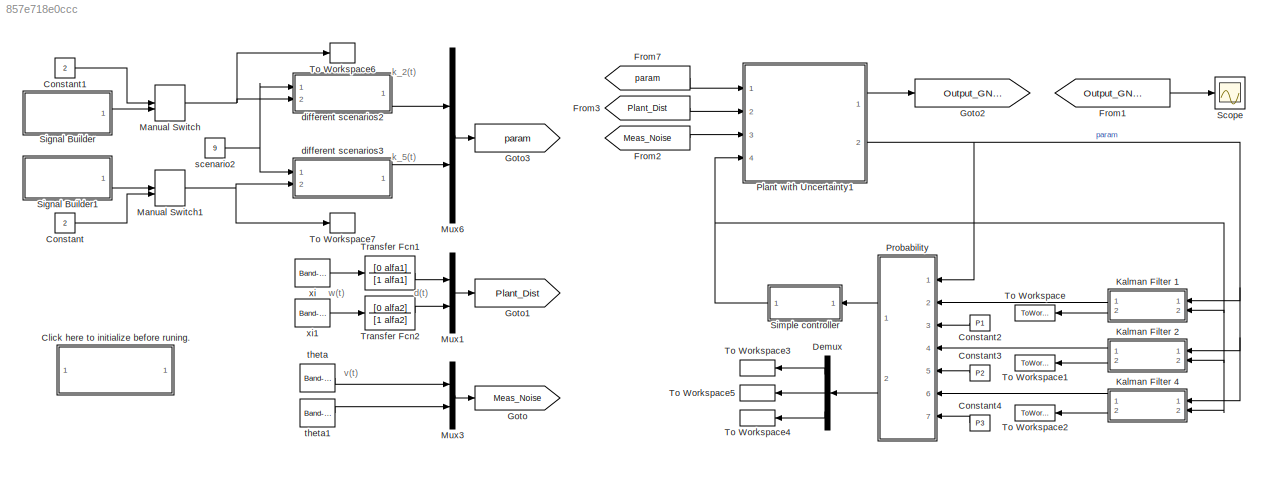
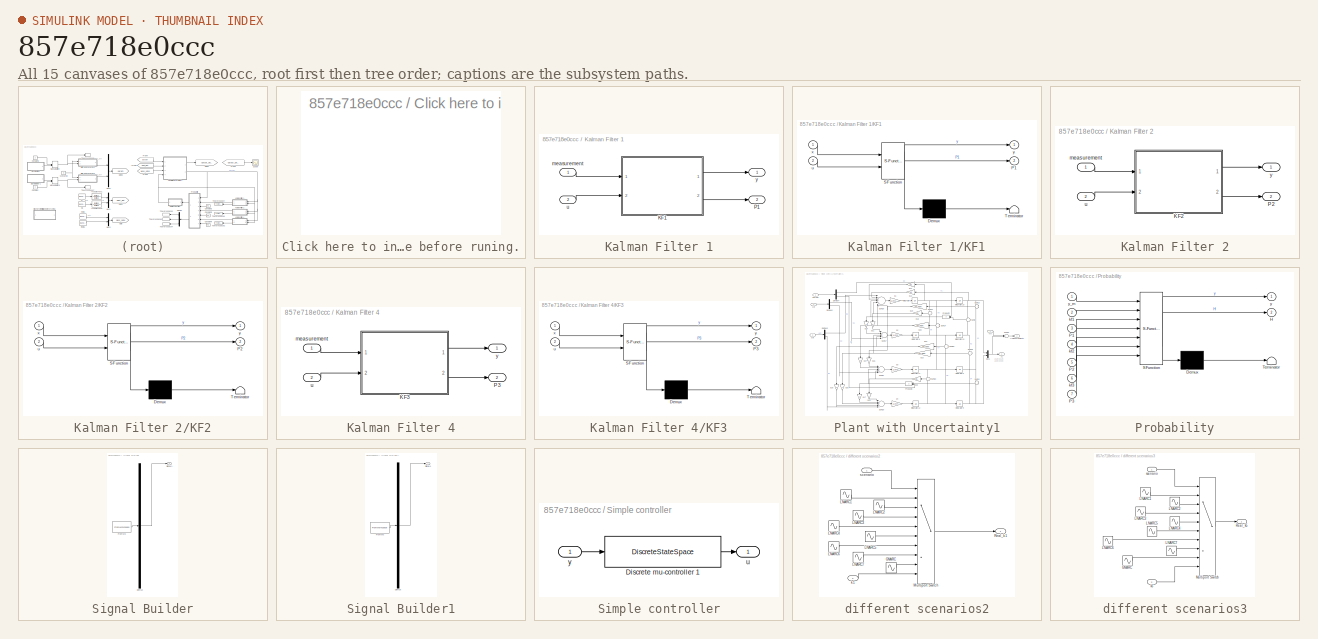
[diagram: thumbnail index - all 15 canvases of the model, root first then tree order]
MODEL slx_857e718e0ccc
KIND model
CONFIG AbsTol = auto
CONFIG EnableMultiTasking = on
CONFIG FixedStep = Ts
CONFIG MaxStep = auto
CONFIG MinStep = auto
CONFIG RelTol = 1e-3
CONFIG SampleTimeConstraint = Unconstrained
CONFIG Solver = ode45
CONFIG SolverName = ode45
CONFIG StartTime = 0.0
CONFIG StopTime = 300
BLOCK [SubSystem] Click here to initialize before runing.
  OpenFcn = start_up
  Ports = []
  RequestExecContextInheritance = off
BLOCK [Constant] Constant
  Value = 2
BLOCK [Constant] Constant1
  Value = 2
BLOCK [Constant] Constant2
  Value = P1
BLOCK [Constant] Constant3
  Value = P2
BLOCK [Constant] Constant4
  Value = P3
BLOCK [Demux] Demux
  DisplayOption = bar
  Outputs = 3
  Ports = [1, 3]
BLOCK [From] From1
  GotoTag = Output_GNARC
BLOCK [From] From2
  GotoTag = Meas_Noise
BLOCK [From] From3
  GotoTag = Plant_Dist
BLOCK [From] From7
  GotoTag = param
BLOCK [Goto] Goto
  GotoTag = Meas_Noise
BLOCK [Goto] Goto1
  GotoTag = Plant_Dist
BLOCK [Goto] Goto2
  GotoTag = Output_GNARC
BLOCK [Goto] Goto3
  GotoTag = param
BLOCK [SubSystem] Kalman Filter 1
  Ports = [2, 2]
  RequestExecContextInheritance = off
BLOCK [SubSystem] Kalman Filter 1/KF1
  ErrorFcn = Stateflow.Translate.translate
  PermitHierarchicalResolution = ExplicitOnly
  Ports = [2, 2]
  RequestExecContextInheritance = off
  SFBlockType = MATLAB Function
  TreatAsAtomicUnit = on
BLOCK [Demux] Kalman Filter 1/KF1/ Demux 
  Outputs = 1
  Ports = [1, 1]
BLOCK [S-Function] Kalman Filter 1/KF1/ SFunction 
  EnableBusSupport = on
  FunctionName = sf_sfun
  PortCounts = [2 3]
  Ports = [2, 3]
  SFcnIsStateOwnerBlock = off
  SFunctionDeploymentMode = off
  Tag = Stateflow S-Function 5
BLOCK [Terminator] Kalman Filter 1/KF1/ Terminator 
BLOCK [Outport] Kalman Filter 1/KF1/P1
  IconDisplay = Port number
  Port = 2
  VectorParamsAs1DForOutWhenUnconnected = off
BLOCK [Inport] Kalman Filter 1/KF1/u
  IconDisplay = Port number
  Port = 2
BLOCK [Inport] Kalman Filter 1/KF1/x
  IconDisplay = Port number
BLOCK [Outport] Kalman Filter 1/KF1/y
  IconDisplay = Port number
  VectorParamsAs1DForOutWhenUnconnected = off
BLOCK [Outport] Kalman Filter 1/P1
  IconDisplay = Port number
  Port = 2
  VectorParamsAs1DForOutWhenUnconnected = off
BLOCK [Inport] Kalman Filter 1/measurement
  IconDisplay = Port number
BLOCK [Inport] Kalman Filter 1/u
  IconDisplay = Port number
  Port = 2
BLOCK [Outport] Kalman Filter 1/y
  IconDisplay = Port number
  VectorParamsAs1DForOutWhenUnconnected = off
BLOCK [SubSystem] Kalman Filter 2
  Ports = [2, 2]
  RequestExecContextInheritance = off
BLOCK [SubSystem] Kalman Filter 2/KF2
  ErrorFcn = Stateflow.Translate.translate
  PermitHierarchicalResolution = ExplicitOnly
  Ports = [2, 2]
  RequestExecContextInheritance = off
  SFBlockType = MATLAB Function
  TreatAsAtomicUnit = on
BLOCK [Demux] Kalman Filter 2/KF2/ Demux 
  Outputs = 1
  Ports = [1, 1]
BLOCK [S-Function] Kalman Filter 2/KF2/ SFunction 
  EnableBusSupport = on
  FunctionName = sf_sfun
  PortCounts = [2 3]
  Ports = [2, 3]
  SFcnIsStateOwnerBlock = off
  SFunctionDeploymentMode = off
  Tag = Stateflow S-Function 3
BLOCK [Terminator] Kalman Filter 2/KF2/ Terminator 
BLOCK [Outport] Kalman Filter 2/KF2/P2
  IconDisplay = Port number
  Port = 2
  VectorParamsAs1DForOutWhenUnconnected = off
BLOCK [Inport] Kalman Filter 2/KF2/u
  IconDisplay = Port number
  Port = 2
BLOCK [Inport] Kalman Filter 2/KF2/x
  IconDisplay = Port number
BLOCK [Outport] Kalman Filter 2/KF2/y
  IconDisplay = Port number
  VectorParamsAs1DForOutWhenUnconnected = off
BLOCK [Outport] Kalman Filter 2/P2
  IconDisplay = Port number
  Port = 2
  VectorParamsAs1DForOutWhenUnconnected = off
BLOCK [Inport] Kalman Filter 2/measurement
  IconDisplay = Port number
BLOCK [Inport] Kalman Filter 2/u
  IconDisplay = Port number
  Port = 2
BLOCK [Outport] Kalman Filter 2/y
  IconDisplay = Port number
  VectorParamsAs1DForOutWhenUnconnected = off
BLOCK [SubSystem] Kalman Filter 4
  Ports = [2, 2]
  RequestExecContextInheritance = off
BLOCK [SubSystem] Kalman Filter 4/KF3
  ErrorFcn = Stateflow.Translate.translate
  PermitHierarchicalResolution = ExplicitOnly
  Ports = [2, 2]
  RequestExecContextInheritance = off
  SFBlockType = MATLAB Function
  TreatAsAtomicUnit = on
BLOCK [Demux] Kalman Filter 4/KF3/ Demux 
  Outputs = 1
  Ports = [1, 1]
BLOCK [S-Function] Kalman Filter 4/KF3/ SFunction 
  EnableBusSupport = on
  FunctionName = sf_sfun
  PortCounts = [2 3]
  Ports = [2, 3]
  SFcnIsStateOwnerBlock = off
  SFunctionDeploymentMode = off
  Tag = Stateflow S-Function 4
BLOCK [Terminator] Kalman Filter 4/KF3/ Terminator 
BLOCK [Outport] Kalman Filter 4/KF3/P3
  IconDisplay = Port number
  Port = 2
  VectorParamsAs1DForOutWhenUnconnected = off
BLOCK [Inport] Kalman Filter 4/KF3/u
  IconDisplay = Port number
  Port = 2
BLOCK [Inport] Kalman Filter 4/KF3/x
  IconDisplay = Port number
BLOCK [Outport] Kalman Filter 4/KF3/y
  IconDisplay = Port number
  VectorParamsAs1DForOutWhenUnconnected = off
BLOCK [Outport] Kalman Filter 4/P3
  IconDisplay = Port number
  Port = 2
  VectorParamsAs1DForOutWhenUnconnected = off
BLOCK [Inport] Kalman Filter 4/measurement
  IconDisplay = Port number
BLOCK [Inport] Kalman Filter 4/u
  IconDisplay = Port number
  Port = 2
BLOCK [Outport] Kalman Filter 4/y
  IconDisplay = Port number
  VectorParamsAs1DForOutWhenUnconnected = off
BLOCK [ManualSwitch] Manual Switch
  CurrentSetting = 0
BLOCK [ManualSwitch] Manual Switch1
BLOCK [Mux] Mux1
  DisplayOption = bar
  Inputs = 2
  Ports = [2, 1]
BLOCK [Mux] Mux3
  DisplayOption = bar
  Inputs = 2
  Ports = [2, 1]
BLOCK [Mux] Mux6
  DisplayOption = bar
  Inputs = 2
  Ports = [2, 1]
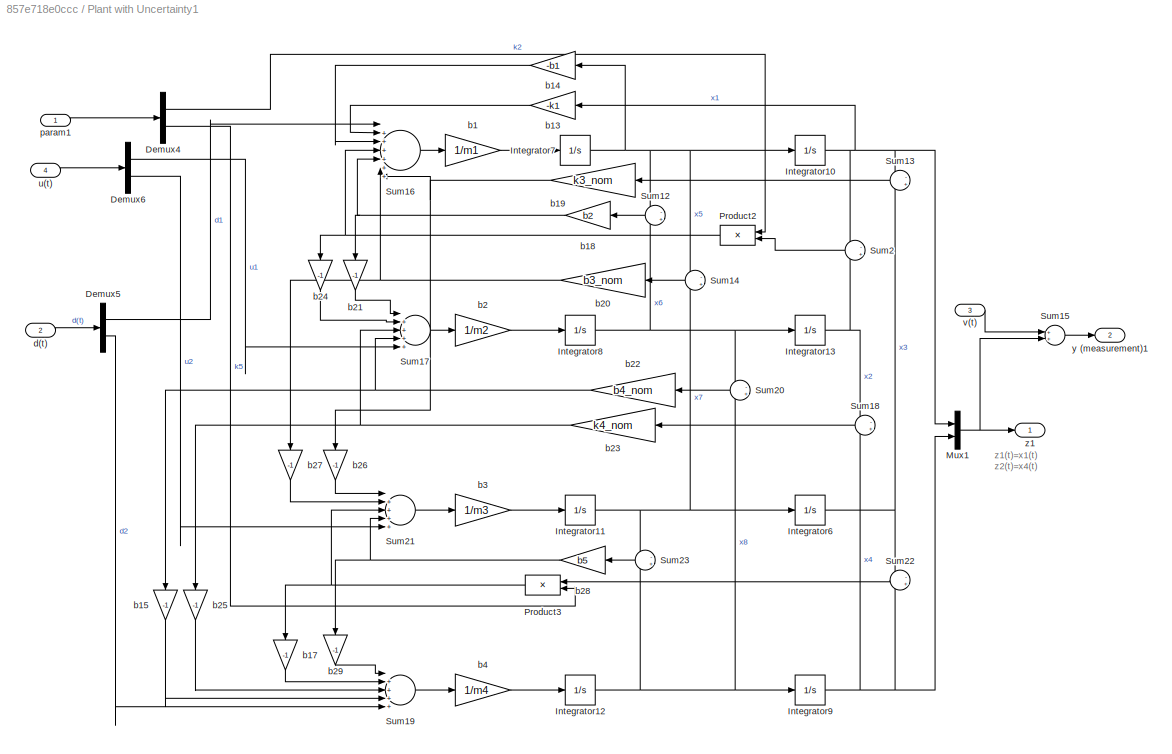
BLOCK [SubSystem] Plant with Uncertainty1
  Ports = [4, 2]
  RequestExecContextInheritance = off
BLOCK [Demux] Plant with Uncertainty1/Demux4
  DisplayOption = bar
  Outputs = 2
  Ports = [1, 2]
BLOCK [Demux] Plant with Uncertainty1/Demux5
  DisplayOption = bar
  Outputs = 2
  Ports = [1, 2]
BLOCK [Demux] Plant with Uncertainty1/Demux6
  DisplayOption = bar
  Outputs = 2
  Ports = [1, 2]
BLOCK [Integrator] Plant with Uncertainty1/Integrator10
  Ports = [1, 1]
BLOCK [Integrator] Plant with Uncertainty1/Integrator11
  Ports = [1, 1]
BLOCK [Integrator] Plant with Uncertainty1/Integrator12
  Ports = [1, 1]
BLOCK [Integrator] Plant with Uncertainty1/Integrator13
  Ports = [1, 1]
BLOCK [Integrator] Plant with Uncertainty1/Integrator6
  Ports = [1, 1]
BLOCK [Integrator] Plant with Uncertainty1/Integrator7
  Ports = [1, 1]
BLOCK [Integrator] Plant with Uncertainty1/Integrator8
  Ports = [1, 1]
BLOCK [Integrator] Plant with Uncertainty1/Integrator9
  Ports = [1, 1]
BLOCK [Mux] Plant with Uncertainty1/Mux1
  DisplayOption = bar
  Inputs = 2
  Ports = [2, 1]
BLOCK [Product] Plant with Uncertainty1/Product2
  Ports = [2, 1]
  RndMeth = Floor
BLOCK [Product] Plant with Uncertainty1/Product3
  Ports = [2, 1]
  RndMeth = Floor
BLOCK [Sum] Plant with Uncertainty1/Sum12
  IconShape = round
  Inputs = -+
  Ports = [2, 1]
BLOCK [Sum] Plant with Uncertainty1/Sum13
  IconShape = round
  Inputs = -+
  Ports = [2, 1]
BLOCK [Sum] Plant with Uncertainty1/Sum14
  IconShape = round
  Inputs = -+
  Ports = [2, 1]
BLOCK [Sum] Plant with Uncertainty1/Sum15
  Ports = [2, 1]
BLOCK [Sum] Plant with Uncertainty1/Sum16
  IconShape = round
  Inputs = |+++++++
  Ports = [7, 1]
BLOCK [Sum] Plant with Uncertainty1/Sum17
  IconShape = round
  Inputs = |+++++
  Ports = [5, 1]
BLOCK [Sum] Plant with Uncertainty1/Sum18
  IconShape = round
  Inputs = -+
  Ports = [2, 1]
BLOCK [Sum] Plant with Uncertainty1/Sum19
  IconShape = round
  Inputs = |+++++
  Ports = [5, 1]
BLOCK [Sum] Plant with Uncertainty1/Sum2
  IconShape = round
  Inputs = -+
  Ports = [2, 1]
BLOCK [Sum] Plant with Uncertainty1/Sum20
  IconShape = round
  Inputs = -+
  Ports = [2, 1]
BLOCK [Sum] Plant with Uncertainty1/Sum21
  IconShape = round
  Inputs = |+++++
  Ports = [5, 1]
BLOCK [Sum] Plant with Uncertainty1/Sum22
  IconShape = round
  Inputs = -+
  Ports = [2, 1]
BLOCK [Sum] Plant with Uncertainty1/Sum23
  IconShape = round
  Inputs = -+
  Ports = [2, 1]
BLOCK [Gain] Plant with Uncertainty1/b1
  Gain = 1/m1
BLOCK [Gain] Plant with Uncertainty1/b13
  Gain = -k1
BLOCK [Gain] Plant with Uncertainty1/b14
  Gain = -b1
BLOCK [Gain] Plant with Uncertainty1/b15
  Gain = -1
BLOCK [Gain] Plant with Uncertainty1/b17
  Gain = -1
BLOCK [Gain] Plant with Uncertainty1/b18
  Gain = b2
BLOCK [Gain] Plant with Uncertainty1/b19
  Gain = k3_nom
BLOCK [Gain] Plant with Uncertainty1/b2
  Gain = 1/m2
BLOCK [Gain] Plant with Uncertainty1/b20
  Gain = b3_nom
BLOCK [Gain] Plant with Uncertainty1/b21
  Gain = -1
BLOCK [Gain] Plant with Uncertainty1/b22
  Gain = b4_nom
BLOCK [Gain] Plant with Uncertainty1/b23
  Gain = k4_nom
BLOCK [Gain] Plant with Uncertainty1/b24
  Gain = -1
BLOCK [Gain] Plant with Uncertainty1/b25
  Gain = -1
BLOCK [Gain] Plant with Uncertainty1/b26
  Gain = -1
BLOCK [Gain] Plant with Uncertainty1/b27
  Gain = -1
BLOCK [Gain] Plant with Uncertainty1/b28
  Gain = b5
BLOCK [Gain] Plant with Uncertainty1/b29
  Gain = -1
BLOCK [Gain] Plant with Uncertainty1/b3
  Gain = 1/m3
BLOCK [Gain] Plant with Uncertainty1/b4
  Gain = 1/m4
BLOCK [Inport] Plant with Uncertainty1/d(t)
  IconDisplay = Port number
  Port = 2
BLOCK [Inport] Plant with Uncertainty1/param1
  IconDisplay = Port number
BLOCK [Inport] Plant with Uncertainty1/u(t)
  IconDisplay = Port number
  Port = 4
BLOCK [Inport] Plant with Uncertainty1/v(t)
  IconDisplay = Port number
  Port = 3
BLOCK [Outport] Plant with Uncertainty1/y (measurement)1
  IconDisplay = Port number
  Port = 2
  VectorParamsAs1DForOutWhenUnconnected = off
BLOCK [Outport] Plant with Uncertainty1/z1
  IconDisplay = Port number
  VectorParamsAs1DForOutWhenUnconnected = off
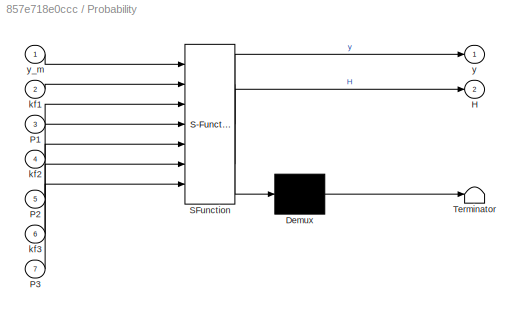
BLOCK [SubSystem] Probability
  ErrorFcn = Stateflow.Translate.translate
  PermitHierarchicalResolution = ExplicitOnly
  Ports = [7, 2]
  RequestExecContextInheritance = off
  SFBlockType = MATLAB Function
  TreatAsAtomicUnit = on
BLOCK [Demux] Probability/ Demux 
  Outputs = 1
  Ports = [1, 1]
BLOCK [S-Function] Probability/ SFunction 
  EnableBusSupport = on
  FunctionName = sf_sfun
  PortCounts = [7 3]
  Ports = [7, 3]
  SFcnIsStateOwnerBlock = off
  SFunctionDeploymentMode = off
  Tag = Stateflow S-Function 2
BLOCK [Terminator] Probability/ Terminator 
BLOCK [Outport] Probability/H
  IconDisplay = Port number
  Port = 2
  VectorParamsAs1DForOutWhenUnconnected = off
BLOCK [Inport] Probability/P1
  IconDisplay = Port number
  Port = 3
BLOCK [Inport] Probability/P2
  IconDisplay = Port number
  Port = 5
BLOCK [Inport] Probability/P3
  IconDisplay = Port number
  Port = 7
BLOCK [Inport] Probability/kf1
  IconDisplay = Port number
  Port = 2
BLOCK [Inport] Probability/kf2
  IconDisplay = Port number
  Port = 4
BLOCK [Inport] Probability/kf3
  IconDisplay = Port number
  Port = 6
BLOCK [Outport] Probability/y
  IconDisplay = Port number
  VectorParamsAs1DForOutWhenUnconnected = off
BLOCK [Inport] Probability/y_m
  IconDisplay = Port number
BLOCK [Scope] Scope
  Floating = off
  NumInputPorts = 1
  Ports = [1]
  ScopeSpecificationString = Simulink.scopes.TimeScopeBlockCfg('CurrentConfiguration', extmgr.ConfigurationSet(extmgr.Configuration('Core','General UI',true),extmgr.Configuration('Core','Source UI',true),extmgr.Configuration('Sources','WiredSimulink',true),extmgr.Configuration('Visuals','Time Domain',true,'SerializedDisplays',{struct('MinYLimReal','-1.04424','MaxYLimReal','0.9276','YLabelReal','','MinYLimMag','0.00000','MaxYL...<+1401ch>
BLOCK [SubSystem] Signal Builder
  ClipboardFcn = sigbuilder_block('clipboard');
  CloseFcn = sigbuilder_block('close');
  ContinueFcn = sigbuilder_block('continue');
  CopyFcn = sigbuilder_block('copy');
  DeleteFcn = sigbuilder_block('delete');
  LoadFcn = sigbuilder_block('load');
  MaskHideContents = on
  ModelCloseFcn = sigbuilder_block('modelClose');
  NameChangeFcn = sigbuilder_block('namechange');
  OpenFcn = sigbuilder_block('open',[420.6 153 550.8 400.2 ]);
  PauseFcn = sigbuilder_block('pause');
  Ports = [0, 1]
  PreSaveFcn = sigbuilder_block('preSave');
  RequestExecContextInheritance = off
  StartFcn = sigbuilder_block('start');
  StopFcn = sigbuilder_block('stop');
  Tag = STV Subsys
BLOCK [Demux] Signal Builder/Demux
  Outputs = 1
  Ports = [1, 1]
  Tag = STV Demux
BLOCK [FromWorkspace] Signal Builder/FromWs
  SampleTime = 0
  Tag = STV FromWs
  VariableName = tuvar
  ZeroCross = on
BLOCK [Outport] Signal Builder/Signal 1
  IconDisplay = Port number
  Tag = STV Outport
BLOCK [SubSystem] Signal Builder1
  ClipboardFcn = sigbuilder_block('clipboard');
  CloseFcn = sigbuilder_block('close');
  ContinueFcn = sigbuilder_block('continue');
  CopyFcn = sigbuilder_block('copy');
  DeleteFcn = sigbuilder_block('delete');
  LoadFcn = sigbuilder_block('load');
  MaskHideContents = on
  ModelCloseFcn = sigbuilder_block('modelClose');
  NameChangeFcn = sigbuilder_block('namechange');
  OpenFcn = sigbuilder_block('open',[420.6 153 550.8 400.2 ]);
  PauseFcn = sigbuilder_block('pause');
  Ports = [0, 1]
  PreSaveFcn = sigbuilder_block('preSave');
  RequestExecContextInheritance = off
  StartFcn = sigbuilder_block('start');
  StopFcn = sigbuilder_block('stop');
  Tag = STV Subsys
BLOCK [Demux] Signal Builder1/Demux
  Outputs = 1
  Ports = [1, 1]
  Tag = STV Demux
BLOCK [FromWorkspace] Signal Builder1/FromWs
  SampleTime = 0
  Tag = STV FromWs
  VariableName = tuvar
  ZeroCross = on
BLOCK [Outport] Signal Builder1/Signal 1
  IconDisplay = Port number
  Tag = STV Outport
BLOCK [SubSystem] Simple controller
  Ports = [1, 1]
  RequestExecContextInheritance = off
BLOCK [DiscreteStateSpace] Simple controller/Discrete mu-controller 1
  A = A_D_Re_GNARC
  B = B_D_Re_GNARC
  C = C_D_Re_GNARC
  D = D_D_Re_GNARC
  Description = disp('sss')
  SampleTime = Ts
BLOCK [Outport] Simple controller/u
  IconDisplay = Port number
  VectorParamsAs1DForOutWhenUnconnected = off
BLOCK [Inport] Simple controller/y
  IconDisplay = Port number
BLOCK [ToWorkspace] To Workspace
  FixptAsFi = on
  MaxDataPoints = inf
  Ports = [1]
  SampleTime = -1
  Save2DSignal = 2-D array (concatenate along first dimension)
  VariableName = P1_out
BLOCK [ToWorkspace] To Workspace1
  FixptAsFi = on
  MaxDataPoints = inf
  Ports = [1]
  SampleTime = -1
  Save2DSignal = 2-D array (concatenate along first dimension)
  VariableName = P2_out
BLOCK [ToWorkspace] To Workspace2
  FixptAsFi = on
  MaxDataPoints = inf
  Ports = [1]
  SampleTime = -1
  Save2DSignal = 2-D array (concatenate along first dimension)
  VariableName = P3_out
BLOCK [ToWorkspace] To Workspace3
  FixptAsFi = on
  MaxDataPoints = inf
  Ports = [1]
  SampleTime = -1
  SaveFormat = Timeseries
  VariableName = h1
BLOCK [ToWorkspace] To Workspace4
  FixptAsFi = on
  MaxDataPoints = inf
  Ports = [1]
  SampleTime = -1
  SaveFormat = Timeseries
  VariableName = h3
BLOCK [ToWorkspace] To Workspace5
  FixptAsFi = on
  MaxDataPoints = inf
  Ports = [1]
  SampleTime = -1
  SaveFormat = Timeseries
  VariableName = h2
BLOCK [ToWorkspace] To Workspace6
  FixptAsFi = on
  MaxDataPoints = inf
  Ports = [1]
  SampleTime = -1
  SaveFormat = Timeseries
  VariableName = k2_in
BLOCK [ToWorkspace] To Workspace7
  FixptAsFi = on
  MaxDataPoints = inf
  Ports = [1]
  SampleTime = -1
  SaveFormat = Timeseries
  VariableName = k5_in
BLOCK [TransferFcn] Transfer Fcn1
  Denominator = [1 alfa1]
  Numerator = [0 alfa1]
BLOCK [TransferFcn] Transfer Fcn2
  Denominator = [1 alfa2]
  Numerator = [0 alfa2]
BLOCK [SubSystem] different scenarios2
  Ports = [2, 1]
  RequestExecContextInheritance = off
BLOCK [Sin] different scenarios2/GNARC
  Amplitude = .75
  Bias = 1
  Frequency = 2*pi/700
  Phase = -pi/2
  Ports = [0, 1]
  SampleTime = 0
BLOCK [Sin] different scenarios2/LNARC1
  Amplitude = .875
  Bias = 1.625
  Frequency = 2*pi/700
  Phase = -pi/2
  Ports = [0, 1]
  SampleTime = 0
BLOCK [Sin] different scenarios2/LNARC2
  Amplitude = .55/2
  Bias = .775
  Frequency = 2*pi/700
  Phase = -pi/2
  Ports = [0, 1]
  SampleTime = 0
BLOCK [Sin] different scenarios2/LNARC3
  Amplitude = .75/2
  Bias = 1.4250
  Frequency = 2*pi/700
  Phase = -pi/2
  Ports = [0, 1]
  SampleTime = 0
BLOCK [Sin] different scenarios2/LNARC4
  Amplitude = .15/2
  Bias = .325
  Frequency = 2*pi/700
  Phase = -pi/2
  Ports = [0, 1]
  SampleTime = 0
BLOCK [Sin] different scenarios2/LNARC5
  Amplitude = .15
  Bias = .55
  Frequency = 2*pi/700
  Phase = -pi/2
  Ports = [0, 1]
  SampleTime = 0
BLOCK [Sin] different scenarios2/LNARC6
  Amplitude = .45/2
  Bias = .925
  Frequency = 2*pi/700
  Phase = -pi/2
  Ports = [0, 1]
  SampleTime = 0
BLOCK [Sin] different scenarios2/LNARC7
  Amplitude = .30
  Bias = 1.45
  Frequency = 2*pi/700
  Phase = -pi/2
  Ports = [0, 1]
  SampleTime = 0
BLOCK [MultiPortSwitch] different scenarios2/Multiport Switch
  InputSameDT = off
  Inputs = 9
  Ports = [10, 1]
  SaturateOnIntegerOverflow = off
BLOCK [Outport] different scenarios2/Real_k1
  IconDisplay = Port number
  VectorParamsAs1DForOutWhenUnconnected = off
BLOCK [Inport] different scenarios2/k1
  IconDisplay = Port number
  Port = 2
BLOCK [Inport] different scenarios2/scenario
  IconDisplay = Port number
BLOCK [SubSystem] different scenarios3
  Ports = [2, 1]
  RequestExecContextInheritance = off
BLOCK [Sin] different scenarios3/GNARC
  Amplitude = 1.6
  Bias = 1.8
  Frequency = 2*pi/700
  Phase = -pi/2
  Ports = [0, 1]
  SampleTime = 0
BLOCK [Sin] different scenarios3/LNARC1
  Amplitude = .8
  Bias = 1.7
  Frequency = 2*pi/700
  Phase = -3*pi/2
  Ports = [0, 1]
  SampleTime = 0
BLOCK [Sin] different scenarios3/LNARC2
  Amplitude = .8
  Bias = 2.6
  Frequency = 2*pi/700
  Phase = -pi/2
  Ports = [0, 1]
  SampleTime = 0
BLOCK [Sin] different scenarios3/LNARC3
  Amplitude = .8
  Bias = 2.6
  Frequency = 2*pi/700
  Phase = -pi/2
  Ports = [0, 1]
  SampleTime = 0
BLOCK [Sin] different scenarios3/LNARC4
  Amplitude = .8
  Bias = 1
  Frequency = 2*pi/700
  Phase = -pi/2
  Ports = [0, 1]
  SampleTime = 0
BLOCK [Sin] different scenarios3/LNARC5
  Amplitude = .8
  Bias = 1
  Frequency = 2*pi/700
  Phase = -pi/2
  Ports = [0, 1]
  SampleTime = 0
BLOCK [Sin] different scenarios3/LNARC6
  Amplitude = .8
  Bias = 1
  Frequency = 2*pi/700
  Phase = -pi/2
  Ports = [0, 1]
  SampleTime = 0
BLOCK [Sin] different scenarios3/LNARC7
  Amplitude = .8
  Bias = 1
  Frequency = 2*pi/700
  Phase = -pi/2
  Ports = [0, 1]
  SampleTime = 0
BLOCK [MultiPortSwitch] different scenarios3/Multiport Switch
  InputSameDT = off
  Inputs = 9
  Ports = [10, 1]
  SaturateOnIntegerOverflow = off
BLOCK [Outport] different scenarios3/Real_k5
  IconDisplay = Port number
  VectorParamsAs1DForOutWhenUnconnected = off
BLOCK [Inport] different scenarios3/k5
  IconDisplay = Port number
  Port = 2
BLOCK [Inport] different scenarios3/scenario
  IconDisplay = Port number
BLOCK [Constant] scenario2
  Value = 9
BLOCK [Reference] theta  REF=simulink/Sources/Band-Limited
White Noise
  Ports = [0, 1]
  SourceBlock = simulink/Sources/Band-Limited\nWhite Noise
  SourceProductBaseCode = SL
  SourceProductName = Simulink
  SourceType = Band-Limited White Noise.
BLOCK [Reference] theta1  REF=simulink/Sources/Band-Limited
White Noise
  Ports = [0, 1]
  SourceBlock = simulink/Sources/Band-Limited\nWhite Noise
  SourceProductBaseCode = SL
  SourceProductName = Simulink
  SourceType = Band-Limited White Noise.
BLOCK [Reference] xi  REF=simulink/Sources/Band-Limited
White Noise
  Ports = [0, 1]
  SourceBlock = simulink/Sources/Band-Limited\nWhite Noise
  SourceProductBaseCode = SL
  SourceProductName = Simulink
  SourceType = Band-Limited White Noise.
BLOCK [Reference] xi1  REF=simulink/Sources/Band-Limited
White Noise
  Ports = [0, 1]
  SourceBlock = simulink/Sources/Band-Limited\nWhite Noise
  SourceProductBaseCode = SL
  SourceProductName = Simulink
  SourceType = Band-Limited White Noise.
ANNOTATION (root): d(t)
ANNOTATION (root): k_2(t)
ANNOTATION (root): k_5(t)
ANNOTATION (root): v(t)
ANNOTATION (root): w(t)
ANNOTATION Plant with Uncertainty1: z1(t)=x1(t) z2(t)=x4(t)
LINE Constant1:1 -> Manual Switch:1
LINE Constant2:1 -> Probability:3
LINE Constant3:1 -> Probability:5
LINE Constant4:1 -> Probability:7
LINE Constant:1 -> Manual Switch1:2
LINE Demux:1 -> To Workspace3:1
LINE Demux:2 -> To Workspace5:1
LINE Demux:3 -> To Workspace4:1
LINE From1:1 -> Scope:1
LINE From2:1 -> Plant with Uncertainty1:3
LINE From3:1 -> Plant with Uncertainty1:2
LINE From7:1 -> Plant with Uncertainty1:1
LINE Kalman Filter 1/KF1:1 -> Kalman Filter 1/y:1
LINE Kalman Filter 1/KF1:2 -> Kalman Filter 1/P1:1
LINE Kalman Filter 1/measurement:1 -> Kalman Filter 1/KF1:1
LINE Kalman Filter 1/u:1 -> Kalman Filter 1/KF1:2
LINE Kalman Filter 1:1 -> Probability:2
LINE Kalman Filter 1:2 -> To Workspace:1
LINE Kalman Filter 2/KF2:1 -> Kalman Filter 2/y:1
LINE Kalman Filter 2/KF2:2 -> Kalman Filter 2/P2:1
LINE Kalman Filter 2/measurement:1 -> Kalman Filter 2/KF2:1
LINE Kalman Filter 2/u:1 -> Kalman Filter 2/KF2:2
LINE Kalman Filter 2:1 -> Probability:4
LINE Kalman Filter 2:2 -> To Workspace1:1
LINE Kalman Filter 4/KF3:1 -> Kalman Filter 4/y:1
LINE Kalman Filter 4/KF3:2 -> Kalman Filter 4/P3:1
LINE Kalman Filter 4/measurement:1 -> Kalman Filter 4/KF3:1
LINE Kalman Filter 4/u:1 -> Kalman Filter 4/KF3:2
LINE Kalman Filter 4:1 -> Probability:6
LINE Kalman Filter 4:2 -> To Workspace2:1
NET Manual Switch1:1 -> To Workspace7:1, different scenarios3:2
NET Manual Switch:1 -> To Workspace6:1, different scenarios2:2
LINE Mux1:1 -> Goto1:1
LINE Mux3:1 -> Goto:1
LINE Mux6:1 -> Goto3:1
LINE Plant with Uncertainty1/Demux4:1 -> Plant with Uncertainty1/Product2:1
LINE Plant with Uncertainty1/Demux4:2 -> Plant with Uncertainty1/Product3:2
LINE Plant with Uncertainty1/Demux5:1 -> Plant with Uncertainty1/Sum16:1
LINE Plant with Uncertainty1/Demux5:2 -> Plant with Uncertainty1/Sum19:5
LINE Plant with Uncertainty1/Demux6:1 -> Plant with Uncertainty1/Sum17:5
LINE Plant with Uncertainty1/Demux6:2 -> Plant with Uncertainty1/Sum21:5
NET Plant with Uncertainty1/Integrator10:1 -> Plant with Uncertainty1/Mux1:1, Plant with Uncertainty1/Sum13:1, Plant with Uncertainty1/Sum2:1, Plant with Uncertainty1/b13:1
NET Plant with Uncertainty1/Integrator11:1 -> Plant with Uncertainty1/Integrator6:1, Plant with Uncertainty1/Sum14:2, Plant with Uncertainty1/Sum23:1
NET Plant with Uncertainty1/Integrator12:1 -> Plant with Uncertainty1/Integrator9:1, Plant with Uncertainty1/Sum20:2, Plant with Uncertainty1/Sum23:2
NET Plant with Uncertainty1/Integrator13:1 -> Plant with Uncertainty1/Sum18:1, Plant with Uncertainty1/Sum2:2
NET Plant with Uncertainty1/Integrator6:1 -> Plant with Uncertainty1/Sum13:2, Plant with Uncertainty1/Sum22:1
NET Plant with Uncertainty1/Integrator7:1 -> Plant with Uncertainty1/Integrator10:1, Plant with Uncertainty1/Sum12:1, Plant with Uncertainty1/Sum14:1, Plant with Uncertainty1/b14:1
NET Plant with Uncertainty1/Integrator8:1 -> Plant with Uncertainty1/Integrator13:1, Plant with Uncertainty1/Sum12:2, Plant with Uncertainty1/Sum20:1
NET Plant with Uncertainty1/Integrator9:1 -> Plant with Uncertainty1/Mux1:2, Plant with Uncertainty1/Sum18:2, Plant with Uncertainty1/Sum22:2
NET Plant with Uncertainty1/Mux1:1 -> Plant with Uncertainty1/Sum15:2, Plant with Uncertainty1/z1:1
NET Plant with Uncertainty1/Product2:1 -> Plant with Uncertainty1/Sum16:4, Plant with Uncertainty1/b24:1
NET Plant with Uncertainty1/Product3:1 -> Plant with Uncertainty1/Sum21:3, Plant with Uncertainty1/b17:1
LINE Plant with Uncertainty1/Sum12:1 -> Plant with Uncertainty1/b18:1
LINE Plant with Uncertainty1/Sum13:1 -> Plant with Uncertainty1/b19:1
LINE Plant with Uncertainty1/Sum14:1 -> Plant with Uncertainty1/b20:1
LINE Plant with Uncertainty1/Sum15:1 -> Plant with Uncertainty1/y (measurement)1:1
LINE Plant with Uncertainty1/Sum16:1 -> Plant with Uncertainty1/b1:1
LINE Plant with Uncertainty1/Sum17:1 -> Plant with Uncertainty1/b2:1
LINE Plant with Uncertainty1/Sum18:1 -> Plant with Uncertainty1/b23:1
LINE Plant with Uncertainty1/Sum19:1 -> Plant with Uncertainty1/b4:1
LINE Plant with Uncertainty1/Sum20:1 -> Plant with Uncertainty1/b22:1
LINE Plant with Uncertainty1/Sum21:1 -> Plant with Uncertainty1/b3:1
LINE Plant with Uncertainty1/Sum22:1 -> Plant with Uncertainty1/Product3:1
LINE Plant with Uncertainty1/Sum23:1 -> Plant with Uncertainty1/b28:1
LINE Plant with Uncertainty1/Sum2:1 -> Plant with Uncertainty1/Product2:2
LINE Plant with Uncertainty1/b13:1 -> Plant with Uncertainty1/Sum16:2
LINE Plant with Uncertainty1/b14:1 -> Plant with Uncertainty1/Sum16:3
LINE Plant with Uncertainty1/b15:1 -> Plant with Uncertainty1/Sum19:4
LINE Plant with Uncertainty1/b17:1 -> Plant with Uncertainty1/Sum19:2
NET Plant with Uncertainty1/b18:1 -> Plant with Uncertainty1/Sum16:5, Plant with Uncertainty1/b21:1
NET Plant with Uncertainty1/b19:1 -> Plant with Uncertainty1/Sum16:7, Plant with Uncertainty1/b26:1
LINE Plant with Uncertainty1/b1:1 -> Plant with Uncertainty1/Integrator7:1
NET Plant with Uncertainty1/b20:1 -> Plant with Uncertainty1/Sum16:6, Plant with Uncertainty1/b27:1
LINE Plant with Uncertainty1/b21:1 -> Plant with Uncertainty1/Sum17:1
NET Plant with Uncertainty1/b22:1 -> Plant with Uncertainty1/Sum17:4, Plant with Uncertainty1/b15:1
NET Plant with Uncertainty1/b23:1 -> Plant with Uncertainty1/Sum17:3, Plant with Uncertainty1/b25:1
LINE Plant with Uncertainty1/b24:1 -> Plant with Uncertainty1/Sum17:2
LINE Plant with Uncertainty1/b25:1 -> Plant with Uncertainty1/Sum19:3
LINE Plant with Uncertainty1/b26:1 -> Plant with Uncertainty1/Sum21:1
LINE Plant with Uncertainty1/b27:1 -> Plant with Uncertainty1/Sum21:2
NET Plant with Uncertainty1/b28:1 -> Plant with Uncertainty1/Sum21:4, Plant with Uncertainty1/b29:1
LINE Plant with Uncertainty1/b29:1 -> Plant with Uncertainty1/Sum19:1
LINE Plant with Uncertainty1/b2:1 -> Plant with Uncertainty1/Integrator8:1
LINE Plant with Uncertainty1/b3:1 -> Plant with Uncertainty1/Integrator11:1
LINE Plant with Uncertainty1/b4:1 -> Plant with Uncertainty1/Integrator12:1
LINE Plant with Uncertainty1/d(t):1 -> Plant with Uncertainty1/Demux5:1
LINE Plant with Uncertainty1/param1:1 -> Plant with Uncertainty1/Demux4:1
LINE Plant with Uncertainty1/u(t):1 -> Plant with Uncertainty1/Demux6:1
LINE Plant with Uncertainty1/v(t):1 -> Plant with Uncertainty1/Sum15:1
LINE Plant with Uncertainty1:1 -> Goto2:1
NET Plant with Uncertainty1:2 -> Kalman Filter 1:1, Kalman Filter 2:1, Kalman Filter 4:1, Probability:1
LINE Probability:1 -> Simple controller:1
LINE Probability:2 -> Demux:1
LINE Signal Builder1:1 -> Manual Switch1:1
LINE Signal Builder:1 -> Manual Switch:2
LINE Simple controller/Discrete mu-controller 1:1 -> Simple controller/u:1
LINE Simple controller/y:1 -> Simple controller/Discrete mu-controller 1:1
NET Simple controller:1 -> Kalman Filter 1:2, Kalman Filter 2:2, Kalman Filter 4:2, Plant with Uncertainty1:4
LINE Transfer Fcn1:1 -> Mux1:1
LINE Transfer Fcn2:1 -> Mux1:2
LINE different scenarios2/GNARC:1 -> different scenarios2/Multiport Switch:9
LINE different scenarios2/LNARC1:1 -> different scenarios2/Multiport Switch:2
LINE different scenarios2/LNARC2:1 -> different scenarios2/Multiport Switch:3
LINE different scenarios2/LNARC3:1 -> different scenarios2/Multiport Switch:4
LINE different scenarios2/LNARC4:1 -> different scenarios2/Multiport Switch:5
LINE different scenarios2/LNARC5:1 -> different scenarios2/Multiport Switch:6
LINE different scenarios2/LNARC6:1 -> different scenarios2/Multiport Switch:7
LINE different scenarios2/LNARC7:1 -> different scenarios2/Multiport Switch:8
LINE different scenarios2/Multiport Switch:1 -> different scenarios2/Real_k1:1
LINE different scenarios2/k1:1 -> different scenarios2/Multiport Switch:10
LINE different scenarios2/scenario:1 -> different scenarios2/Multiport Switch:1
LINE different scenarios2:1 -> Mux6:1
LINE different scenarios3/GNARC:1 -> different scenarios3/Multiport Switch:9
LINE different scenarios3/LNARC1:1 -> different scenarios3/Multiport Switch:2
LINE different scenarios3/LNARC2:1 -> different scenarios3/Multiport Switch:3
LINE different scenarios3/LNARC3:1 -> different scenarios3/Multiport Switch:4
LINE different scenarios3/LNARC4:1 -> different scenarios3/Multiport Switch:5
LINE different scenarios3/LNARC5:1 -> different scenarios3/Multiport Switch:6
LINE different scenarios3/LNARC6:1 -> different scenarios3/Multiport Switch:7
LINE different scenarios3/LNARC7:1 -> different scenarios3/Multiport Switch:8
LINE different scenarios3/Multiport Switch:1 -> different scenarios3/Real_k5:1
LINE different scenarios3/k5:1 -> different scenarios3/Multiport Switch:10
LINE different scenarios3/scenario:1 -> different scenarios3/Multiport Switch:1
LINE different scenarios3:1 -> Mux6:2
NET scenario2:1 -> different scenarios2:1, different scenarios3:1
LINE theta1:1 -> Mux3:2
LINE theta:1 -> Mux3:1
LINE xi1:1 -> Transfer Fcn2:1
LINE xi:1 -> Transfer Fcn1:1
note: NET lines group one-source signal fan-out (src -> all destinations, sorted); 1:1 wires keep LINE
CHART Probability states=1 transitions=1
  STATE_LABEL 'eML_blk_kernel()'
  STATE_LABEL "SCRIPT:\nfunction [y, H] = fcn(y_m, kf1, P1, kf2, P2, kf3, P3)\npersistent h1\npersistent h2\npersistent h3\nif isempty(h1)\n        h1 = 1/3;\n        h2 = 1/3;\n        h3 = 1/3;\nend\ny_tilda1 = y_m - kf1;\ny_tilda2 = y_m - kf2;\ny_tilda3 = y_m - kf3;\nC = [1 0 0 0 0 0 0 0 0 0;\n     0 0 0 1 0 0 0 0 0 0];\nR_c = diag([1e-6 1e-6]);\nTs = 0.001;\ntheta_d = R_c/Ts;\ns_1 = C*P1*C' + theta_d;\ns_2 = C*P2*C' + theta_d;...<+623ch>"
CHART Kalman Filter 2/KF2 states=1 transitions=1
  STATE_LABEL 'eML_blk_kernel()'
  STATE_LABEL 'SCRIPT:\nfunction [y,P2] = KF_disc(x,u)\n\npersistent P_bar;\npersistent x_bar;\npersistent P_hat;\npersistent x_hat;\n\nif isempty(P_bar)\n    P_bar = zeros(10);\n    x_bar = zeros(10,1);\n    P_hat = zeros(10);\n    x_hat = zeros(10,1);\nend\n\nk1=0.15; k2=1; k3=0.1; k4=0.1; k5=1.75;\nb1=0.1;  b2=0.1; b3=0.1; b4=0.1; b5 =0.1;\nJ = 1;\nA = [ \n    0 0 0 0 1 0 0 0 0 0;\n    0 0 0 0 0 1 0 0 0 0;\n    0 0 0 0 0 0 1 0 0 ...<+970ch>'
CHART Kalman Filter 4/KF3 states=1 transitions=1
  STATE_LABEL 'eML_blk_kernel()'
  STATE_LABEL 'SCRIPT:\nfunction [y,P3] = KF_disc(x,u)\n\npersistent P_bar;\npersistent x_bar;\npersistent P_hat;\npersistent x_hat;\n\nif isempty(P_bar)\n    P_bar = zeros(10);\n    x_bar = zeros(10,1);\n    P_hat = zeros(10);\n    x_hat = zeros(10,1);\nend\n\nk1=0.15; k2=2; k3=0.1; k4=0.1; k5=1.25;\nb1=0.1;  b2=0.1; b3=0.1; b4=0.1; b5 =0.1;\nJ = 1;\nA = [ \n    0 0 0 0 1 0 0 0 0 0;\n    0 0 0 0 0 1 0 0 0 0;\n    0 0 0 0 0 0 1 0 0 ...<+970ch>'
CHART Kalman Filter 1/KF1 states=1 transitions=1
  STATE_LABEL 'eML_blk_kernel()'
  STATE_LABEL 'SCRIPT:\nfunction [y,P1] = KF_disc(x,u)\n\npersistent P_bar;\npersistent x_bar;\npersistent P_hat;\npersistent x_hat;\n\nif isempty(P_bar)\n    P_bar = zeros(10);\n    x_bar = zeros(10,1);\n    P_hat = zeros(10);\n    x_hat = zeros(10,1);\nend\n    \nk1=0.15; k2=2; k3=0.1; k4=0.1; k5=2;\nb1=0.1;  b2=0.1; b3=0.1; b4=0.1; b5 =0.1;\nJ = 1;\nA = [ \n    0 0 0 0 1 0 0 0 0 0;\n    0 0 0 0 0 1 0 0 0 0;\n    0 0 0 0 0 0 1 0 0...<+971ch>'
